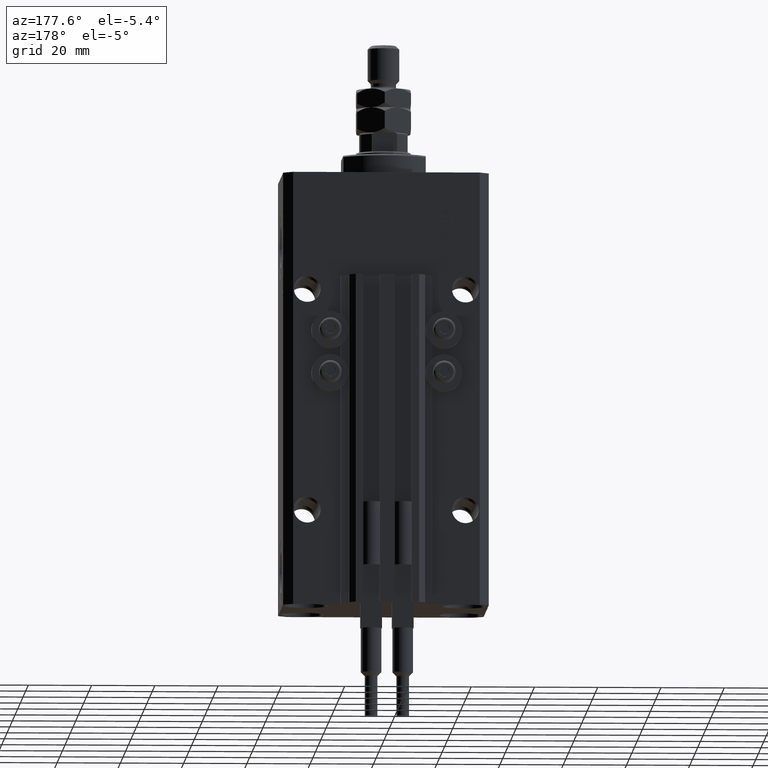
[diagram: clean part render]
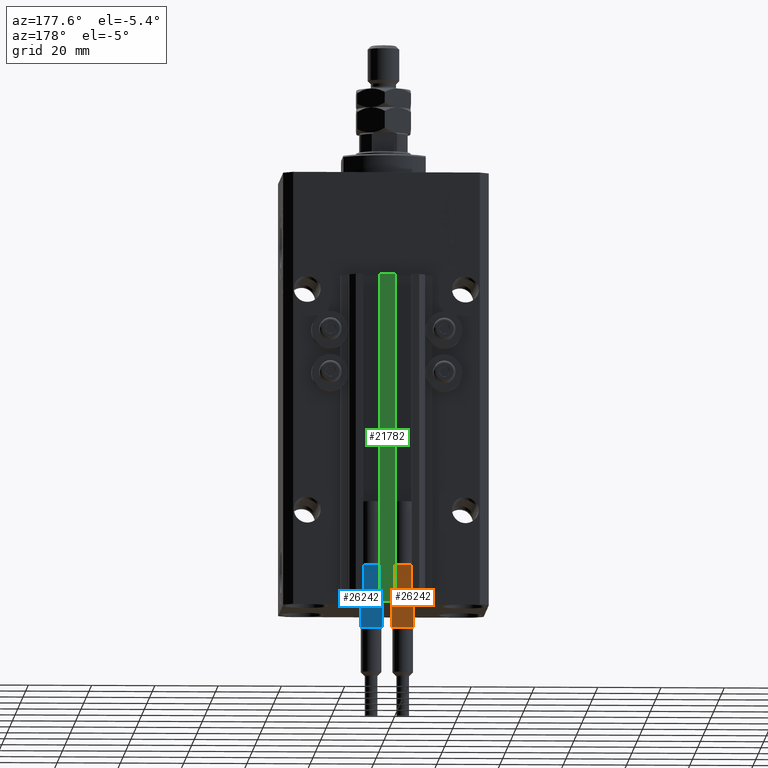
[diagram: same view with three faces highlighted in distinct colors, each labeled with its STEP entity id]
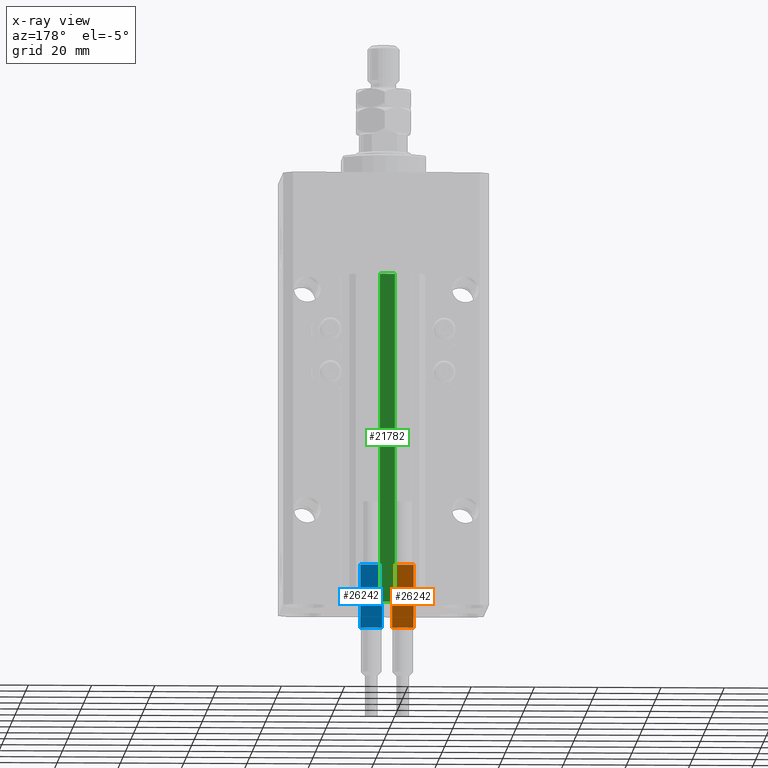
[diagram: x-ray of the same camera — body ghosted, the three highlighted faces saturated]
A machine part, auxiliary view with three faces highlighted in distinct colors.
The next image is the same camera in x-ray (body ghosted, the three faces saturated) — at least one of them is partly hidden behind the body in this view.
Their STEP definitions:

[orange] entity #26242 — the highlighted planar face has unit normal (0, -1, 0).
#1839 = VERTEX_POINT ( 'NONE', #47384 ) ;
#2849 = CARTESIAN_POINT ( 'NONE',  ( -3.399999999999999911, 1.500000000000000000, 40.00000000000000000 ) ) ;
#3754 = EDGE_LOOP ( 'NONE', ( #44448, #18198, #19915, #23191, #42830, #7473, #4060, #48796 ) ) ;
#4060 = ORIENTED_EDGE ( 'NONE', *, *, #20444, .F. ) ;
#4182 = DIRECTION ( 'NONE',  ( -1.000000000000000000, -0.000000000000000000, -0.000000000000000000 ) ) ;
#5832 = DIRECTION ( 'NONE',  ( 0.000000000000000000, -1.000000000000000000, 0.000000000000000000 ) ) ;
#6800 = CARTESIAN_POINT ( 'NONE',  ( -2.883140648667699146, 1.500000000000000000, 40.00000000000000000 ) ) ;
#7126 = DIRECTION ( 'NONE',  ( -1.000000000000000000, -0.000000000000000000, -0.000000000000000000 ) ) ;
#7473 = ORIENTED_EDGE ( 'NONE', *, *, #41092, .F. ) ;
#7586 = VECTOR ( 'NONE', #7126, 1000.000000000000000 ) ;
#7626 = EDGE_CURVE ( 'NONE', #1839, #8684, #23623, .T. ) ;
#8684 = VERTEX_POINT ( 'NONE', #32338 ) ;
#10179 = VERTEX_POINT ( 'NONE', #45226 ) ;
#11160 = DIRECTION ( 'NONE',  ( -1.000000000000000000, -0.000000000000000000, -0.000000000000000000 ) ) ;
#12053 = VECTOR ( 'NONE', #33275, 1000.000000000000000 ) ;
#13035 = DIRECTION ( 'NONE',  ( -0.000000000000000000, -0.000000000000000000, -1.000000000000000000 ) ) ;
#13949 = CARTESIAN_POINT ( 'NONE',  ( 3.400000000000000355, 1.500000000000000000, 20.00000000000000000 ) ) ;
#14453 = DIRECTION ( 'NONE',  ( -1.000000000000000000, -0.000000000000000000, -0.000000000000000000 ) ) ;
#18116 = DIRECTION ( 'NONE',  ( -1.000000000000000000, -0.000000000000000000, -0.000000000000000000 ) ) ;
#18198 = ORIENTED_EDGE ( 'NONE', *, *, #23450, .T. ) ;
#19915 = ORIENTED_EDGE ( 'NONE', *, *, #7626, .T. ) ;
#20444 = EDGE_CURVE ( 'NONE', #10179, #44128, #41757, .T. ) ;
#20695 = DIRECTION ( 'NONE',  ( 0.000000000000000000, -0.000000000000000000, -1.000000000000000000 ) ) ;
#21976 = VERTEX_POINT ( 'NONE', #6800 ) ;
#22535 = DIRECTION ( 'NONE',  ( -1.000000000000000000, -0.000000000000000000, -0.000000000000000000 ) ) ;
#23191 = ORIENTED_EDGE ( 'NONE', *, *, #34085, .F. ) ;
#23450 = EDGE_CURVE ( 'NONE', #44063, #1839, #50158, .T. ) ;
#23623 = LINE ( 'NONE', #23877, #35426 ) ;
#23877 = CARTESIAN_POINT ( 'NONE',  ( -3.399999999999999911, 1.500000000000000000, 20.00000000000000000 ) ) ;
#25587 = CARTESIAN_POINT ( 'NONE',  ( 2.883140648667699146, 1.500000000000000000, 40.00000000000000000 ) ) ;
#26242 = ADVANCED_FACE ( 'NONE', ( #28874 ), #33221, .F. ) ;
#28408 = LINE ( 'NONE', #40968, #40902 ) ;
#28874 = FACE_OUTER_BOUND ( 'NONE', #3754, .T. ) ;
#29125 = CARTESIAN_POINT ( 'NONE',  ( -3.399999999999999911, 1.500000000000000000, 40.00000000000000000 ) ) ;
#29178 = CARTESIAN_POINT ( 'NONE',  ( -3.399999999999999911, 1.500000000000000000, 40.00000000000000000 ) ) ;
#29621 = VERTEX_POINT ( 'NONE', #13949 ) ;
#30375 = LINE ( 'NONE', #40913, #44122 ) ;
#30623 = LINE ( 'NONE', #42661, #50647 ) ;
#32338 = CARTESIAN_POINT ( 'NONE',  ( -3.399999999999999911, 1.500000000000000000, 20.00000000000000000 ) ) ;
#33221 = PLANE ( 'NONE',  #43652 ) ;
#33275 = DIRECTION ( 'NONE',  ( -0.000000000000000000, -0.000000000000000000, -1.000000000000000000 ) ) ;
#34085 = EDGE_CURVE ( 'NONE', #47034, #8684, #36865, .T. ) ;
#34767 = CARTESIAN_POINT ( 'NONE',  ( -3.399999999999999911, 1.500000000000000000, 20.00000000000000000 ) ) ;
#35426 = VECTOR ( 'NONE', #4182, 1000.000000000000000 ) ;
#35599 = CARTESIAN_POINT ( 'NONE',  ( 3.051229260478471428, 1.500000000000000000, 20.00000000000000000 ) ) ;
#35879 = EDGE_CURVE ( 'NONE', #21976, #47034, #48534, .T. ) ;
#36865 = LINE ( 'NONE', #29178, #12053 ) ;
#40223 = EDGE_CURVE ( 'NONE', #29621, #44063, #30623, .T. ) ;
#40902 = VECTOR ( 'NONE', #13035, 1000.000000000000000 ) ;
#40913 = CARTESIAN_POINT ( 'NONE',  ( -3.399999999999999911, 1.500000000000000000, 40.00000000000000000 ) ) ;
#40968 = CARTESIAN_POINT ( 'NONE',  ( 3.400000000000000355, 1.500000000000000000, 40.00000000000000000 ) ) ;
#41092 = EDGE_CURVE ( 'NONE', #44128, #21976, #30375, .T. ) ;
#41757 = LINE ( 'NONE', #2849, #49276 ) ;
#41870 = CARTESIAN_POINT ( 'NONE',  ( -3.399999999999999911, 1.500000000000000000, 40.00000000000000000 ) ) ;
#42661 = CARTESIAN_POINT ( 'NONE',  ( -3.399999999999999911, 1.500000000000000000, 20.00000000000000000 ) ) ;
#42830 = ORIENTED_EDGE ( 'NONE', *, *, #35879, .F. ) ;
#43056 = VECTOR ( 'NONE', #14453, 1000.000000000000000 ) ;
#43652 = AXIS2_PLACEMENT_3D ( 'NONE', #29125, #5832, #20695 ) ;
#44063 = VERTEX_POINT ( 'NONE', #35599 ) ;
#44122 = VECTOR ( 'NONE', #18116, 1000.000000000000000 ) ;
#44128 = VERTEX_POINT ( 'NONE', #25587 ) ;
#44448 = ORIENTED_EDGE ( 'NONE', *, *, #40223, .T. ) ;
#45226 = CARTESIAN_POINT ( 'NONE',  ( 3.400000000000000355, 1.500000000000000000, 40.00000000000000000 ) ) ;
#45914 = CARTESIAN_POINT ( 'NONE',  ( -3.399999999999999911, 1.500000000000000000, 40.00000000000000000 ) ) ;
#47034 = VERTEX_POINT ( 'NONE', #45914 ) ;
#47384 = CARTESIAN_POINT ( 'NONE',  ( -3.051229260478471428, 1.500000000000000000, 20.00000000000000000 ) ) ;
#48223 = EDGE_CURVE ( 'NONE', #10179, #29621, #28408, .T. ) ;
#48534 = LINE ( 'NONE', #41870, #43056 ) ;
#48796 = ORIENTED_EDGE ( 'NONE', *, *, #48223, .T. ) ;
#49276 = VECTOR ( 'NONE', #22535, 1000.000000000000000 ) ;
#50158 = LINE ( 'NONE', #34767, #7586 ) ;
#50647 = VECTOR ( 'NONE', #11160, 1000.000000000000000 ) ;

[blue] entity #26242 — the highlighted planar face has unit normal (0, -1, 0).
#1839 = VERTEX_POINT ( 'NONE', #47384 ) ;
#2849 = CARTESIAN_POINT ( 'NONE',  ( -3.399999999999999911, 1.500000000000000000, 40.00000000000000000 ) ) ;
#3754 = EDGE_LOOP ( 'NONE', ( #44448, #18198, #19915, #23191, #42830, #7473, #4060, #48796 ) ) ;
#4060 = ORIENTED_EDGE ( 'NONE', *, *, #20444, .F. ) ;
#4182 = DIRECTION ( 'NONE',  ( -1.000000000000000000, -0.000000000000000000, -0.000000000000000000 ) ) ;
#5832 = DIRECTION ( 'NONE',  ( 0.000000000000000000, -1.000000000000000000, 0.000000000000000000 ) ) ;
#6800 = CARTESIAN_POINT ( 'NONE',  ( -2.883140648667699146, 1.500000000000000000, 40.00000000000000000 ) ) ;
#7126 = DIRECTION ( 'NONE',  ( -1.000000000000000000, -0.000000000000000000, -0.000000000000000000 ) ) ;
#7473 = ORIENTED_EDGE ( 'NONE', *, *, #41092, .F. ) ;
#7586 = VECTOR ( 'NONE', #7126, 1000.000000000000000 ) ;
#7626 = EDGE_CURVE ( 'NONE', #1839, #8684, #23623, .T. ) ;
#8684 = VERTEX_POINT ( 'NONE', #32338 ) ;
#10179 = VERTEX_POINT ( 'NONE', #45226 ) ;
#11160 = DIRECTION ( 'NONE',  ( -1.000000000000000000, -0.000000000000000000, -0.000000000000000000 ) ) ;
#12053 = VECTOR ( 'NONE', #33275, 1000.000000000000000 ) ;
#13035 = DIRECTION ( 'NONE',  ( -0.000000000000000000, -0.000000000000000000, -1.000000000000000000 ) ) ;
#13949 = CARTESIAN_POINT ( 'NONE',  ( 3.400000000000000355, 1.500000000000000000, 20.00000000000000000 ) ) ;
#14453 = DIRECTION ( 'NONE',  ( -1.000000000000000000, -0.000000000000000000, -0.000000000000000000 ) ) ;
#18116 = DIRECTION ( 'NONE',  ( -1.000000000000000000, -0.000000000000000000, -0.000000000000000000 ) ) ;
#18198 = ORIENTED_EDGE ( 'NONE', *, *, #23450, .T. ) ;
#19915 = ORIENTED_EDGE ( 'NONE', *, *, #7626, .T. ) ;
#20444 = EDGE_CURVE ( 'NONE', #10179, #44128, #41757, .T. ) ;
#20695 = DIRECTION ( 'NONE',  ( 0.000000000000000000, -0.000000000000000000, -1.000000000000000000 ) ) ;
#21976 = VERTEX_POINT ( 'NONE', #6800 ) ;
#22535 = DIRECTION ( 'NONE',  ( -1.000000000000000000, -0.000000000000000000, -0.000000000000000000 ) ) ;
#23191 = ORIENTED_EDGE ( 'NONE', *, *, #34085, .F. ) ;
#23450 = EDGE_CURVE ( 'NONE', #44063, #1839, #50158, .T. ) ;
#23623 = LINE ( 'NONE', #23877, #35426 ) ;
#23877 = CARTESIAN_POINT ( 'NONE',  ( -3.399999999999999911, 1.500000000000000000, 20.00000000000000000 ) ) ;
#25587 = CARTESIAN_POINT ( 'NONE',  ( 2.883140648667699146, 1.500000000000000000, 40.00000000000000000 ) ) ;
#26242 = ADVANCED_FACE ( 'NONE', ( #28874 ), #33221, .F. ) ;
#28408 = LINE ( 'NONE', #40968, #40902 ) ;
#28874 = FACE_OUTER_BOUND ( 'NONE', #3754, .T. ) ;
#29125 = CARTESIAN_POINT ( 'NONE',  ( -3.399999999999999911, 1.500000000000000000, 40.00000000000000000 ) ) ;
#29178 = CARTESIAN_POINT ( 'NONE',  ( -3.399999999999999911, 1.500000000000000000, 40.00000000000000000 ) ) ;
#29621 = VERTEX_POINT ( 'NONE', #13949 ) ;
#30375 = LINE ( 'NONE', #40913, #44122 ) ;
#30623 = LINE ( 'NONE', #42661, #50647 ) ;
#32338 = CARTESIAN_POINT ( 'NONE',  ( -3.399999999999999911, 1.500000000000000000, 20.00000000000000000 ) ) ;
#33221 = PLANE ( 'NONE',  #43652 ) ;
#33275 = DIRECTION ( 'NONE',  ( -0.000000000000000000, -0.000000000000000000, -1.000000000000000000 ) ) ;
#34085 = EDGE_CURVE ( 'NONE', #47034, #8684, #36865, .T. ) ;
#34767 = CARTESIAN_POINT ( 'NONE',  ( -3.399999999999999911, 1.500000000000000000, 20.00000000000000000 ) ) ;
#35426 = VECTOR ( 'NONE', #4182, 1000.000000000000000 ) ;
#35599 = CARTESIAN_POINT ( 'NONE',  ( 3.051229260478471428, 1.500000000000000000, 20.00000000000000000 ) ) ;
#35879 = EDGE_CURVE ( 'NONE', #21976, #47034, #48534, .T. ) ;
#36865 = LINE ( 'NONE', #29178, #12053 ) ;
#40223 = EDGE_CURVE ( 'NONE', #29621, #44063, #30623, .T. ) ;
#40902 = VECTOR ( 'NONE', #13035, 1000.000000000000000 ) ;
#40913 = CARTESIAN_POINT ( 'NONE',  ( -3.399999999999999911, 1.500000000000000000, 40.00000000000000000 ) ) ;
#40968 = CARTESIAN_POINT ( 'NONE',  ( 3.400000000000000355, 1.500000000000000000, 40.00000000000000000 ) ) ;
#41092 = EDGE_CURVE ( 'NONE', #44128, #21976, #30375, .T. ) ;
#41757 = LINE ( 'NONE', #2849, #49276 ) ;
#41870 = CARTESIAN_POINT ( 'NONE',  ( -3.399999999999999911, 1.500000000000000000, 40.00000000000000000 ) ) ;
#42661 = CARTESIAN_POINT ( 'NONE',  ( -3.399999999999999911, 1.500000000000000000, 20.00000000000000000 ) ) ;
#42830 = ORIENTED_EDGE ( 'NONE', *, *, #35879, .F. ) ;
#43056 = VECTOR ( 'NONE', #14453, 1000.000000000000000 ) ;
#43652 = AXIS2_PLACEMENT_3D ( 'NONE', #29125, #5832, #20695 ) ;
#44063 = VERTEX_POINT ( 'NONE', #35599 ) ;
#44122 = VECTOR ( 'NONE', #18116, 1000.000000000000000 ) ;
#44128 = VERTEX_POINT ( 'NONE', #25587 ) ;
#44448 = ORIENTED_EDGE ( 'NONE', *, *, #40223, .T. ) ;
#45226 = CARTESIAN_POINT ( 'NONE',  ( 3.400000000000000355, 1.500000000000000000, 40.00000000000000000 ) ) ;
#45914 = CARTESIAN_POINT ( 'NONE',  ( -3.399999999999999911, 1.500000000000000000, 40.00000000000000000 ) ) ;
#47034 = VERTEX_POINT ( 'NONE', #45914 ) ;
#47384 = CARTESIAN_POINT ( 'NONE',  ( -3.051229260478471428, 1.500000000000000000, 20.00000000000000000 ) ) ;
#48223 = EDGE_CURVE ( 'NONE', #10179, #29621, #28408, .T. ) ;
#48534 = LINE ( 'NONE', #41870, #43056 ) ;
#48796 = ORIENTED_EDGE ( 'NONE', *, *, #48223, .T. ) ;
#49276 = VECTOR ( 'NONE', #22535, 1000.000000000000000 ) ;
#50158 = LINE ( 'NONE', #34767, #7586 ) ;
#50647 = VECTOR ( 'NONE', #11160, 1000.000000000000000 ) ;

[green] entity #21782 — the highlighted planar face has unit normal (0, -1, 0).
#3371 = LINE ( 'NONE', #42530, #31854 ) ;
#6874 = EDGE_CURVE ( 'NONE', #17891, #29451, #7395, .T. ) ;
#7140 = LINE ( 'NONE', #18678, #21252 ) ;
#7395 = LINE ( 'NONE', #38389, #19852 ) ;
#9137 = EDGE_LOOP ( 'NONE', ( #26318, #19442, #14379, #17961 ) ) ;
#11410 = CARTESIAN_POINT ( 'NONE',  ( -2.350000000000003197, 30.49999999999949907, -137.0000000000000000 ) ) ;
#14379 = ORIENTED_EDGE ( 'NONE', *, *, #6874, .F. ) ;
#14568 = DIRECTION ( 'NONE',  ( 1.000000000000000000, 0.000000000000000000, 0.000000000000000000 ) ) ;
#15368 = DIRECTION ( 'NONE',  ( 1.000000000000000000, 0.000000000000000000, 0.000000000000000000 ) ) ;
#17170 = CARTESIAN_POINT ( 'NONE',  ( -2.350000000000003197, 30.49999999999949907, -137.0000000000000000 ) ) ;
#17784 = VECTOR ( 'NONE', #33295, 1000.000000000000000 ) ;
#17891 = VERTEX_POINT ( 'NONE', #11410 ) ;
#17961 = ORIENTED_EDGE ( 'NONE', *, *, #36458, .T. ) ;
#18678 = CARTESIAN_POINT ( 'NONE',  ( 2.349999999999999645, 30.49999999999949907, -137.0000000000000000 ) ) ;
#19442 = ORIENTED_EDGE ( 'NONE', *, *, #48374, .F. ) ;
#19852 = VECTOR ( 'NONE', #14568, 1000.000000000000000 ) ;
#19903 = AXIS2_PLACEMENT_3D ( 'NONE', #49895, #22734, #30410 ) ;
#21252 = VECTOR ( 'NONE', #30431, 1000.000000000000000 ) ;
#21782 = ADVANCED_FACE ( 'NONE', ( #42209 ), #41457, .F. ) ;
#22734 = DIRECTION ( 'NONE',  ( 0.000000000000000000, -1.000000000000000000, 0.000000000000000000 ) ) ;
#25533 = CARTESIAN_POINT ( 'NONE',  ( 2.349999999999999645, 30.49999999999949907, -33.00000000000000000 ) ) ;
#26318 = ORIENTED_EDGE ( 'NONE', *, *, #47976, .T. ) ;
#27545 = CARTESIAN_POINT ( 'NONE',  ( 2.349999999999999645, 30.49999999999949907, -137.0000000000000000 ) ) ;
#29451 = VERTEX_POINT ( 'NONE', #27545 ) ;
#30410 = DIRECTION ( 'NONE',  ( 0.000000000000000000, -0.000000000000000000, -1.000000000000000000 ) ) ;
#30431 = DIRECTION ( 'NONE',  ( 0.000000000000000000, 0.000000000000000000, 1.000000000000000000 ) ) ;
#31854 = VECTOR ( 'NONE', #15368, 1000.000000000000000 ) ;
#33295 = DIRECTION ( 'NONE',  ( 0.000000000000000000, 0.000000000000000000, 1.000000000000000000 ) ) ;
#36458 = EDGE_CURVE ( 'NONE', #17891, #36574, #40484, .T. ) ;
#36574 = VERTEX_POINT ( 'NONE', #49694 ) ;
#38389 = CARTESIAN_POINT ( 'NONE',  ( -2.350000000000003197, 30.49999999999949907, -137.0000000000000000 ) ) ;
#40484 = LINE ( 'NONE', #17170, #17784 ) ;
#41457 = PLANE ( 'NONE',  #19903 ) ;
#42209 = FACE_OUTER_BOUND ( 'NONE', #9137, .T. ) ;
#42530 = CARTESIAN_POINT ( 'NONE',  ( -2.350000000000003197, 30.49999999999949907, -33.00000000000000000 ) ) ;
#45606 = VERTEX_POINT ( 'NONE', #25533 ) ;
#47976 = EDGE_CURVE ( 'NONE', #36574, #45606, #3371, .T. ) ;
#48374 = EDGE_CURVE ( 'NONE', #29451, #45606, #7140, .T. ) ;
#49694 = CARTESIAN_POINT ( 'NONE',  ( -2.350000000000003197, 30.49999999999949907, -33.00000000000000000 ) ) ;
#49895 = CARTESIAN_POINT ( 'NONE',  ( -2.350000000000003197, 30.49999999999949907, -137.0000000000000000 ) ) ;